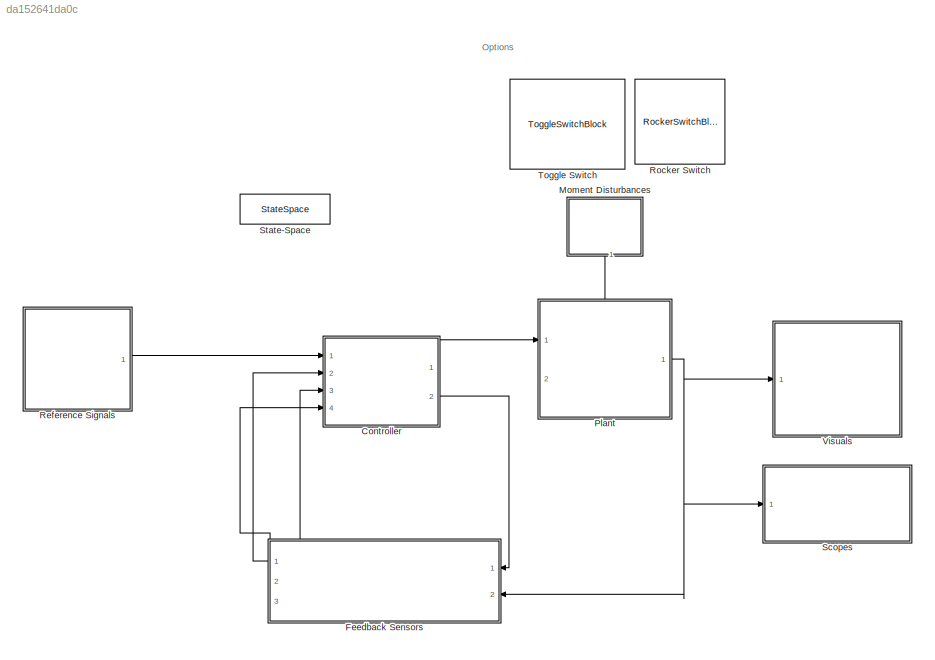
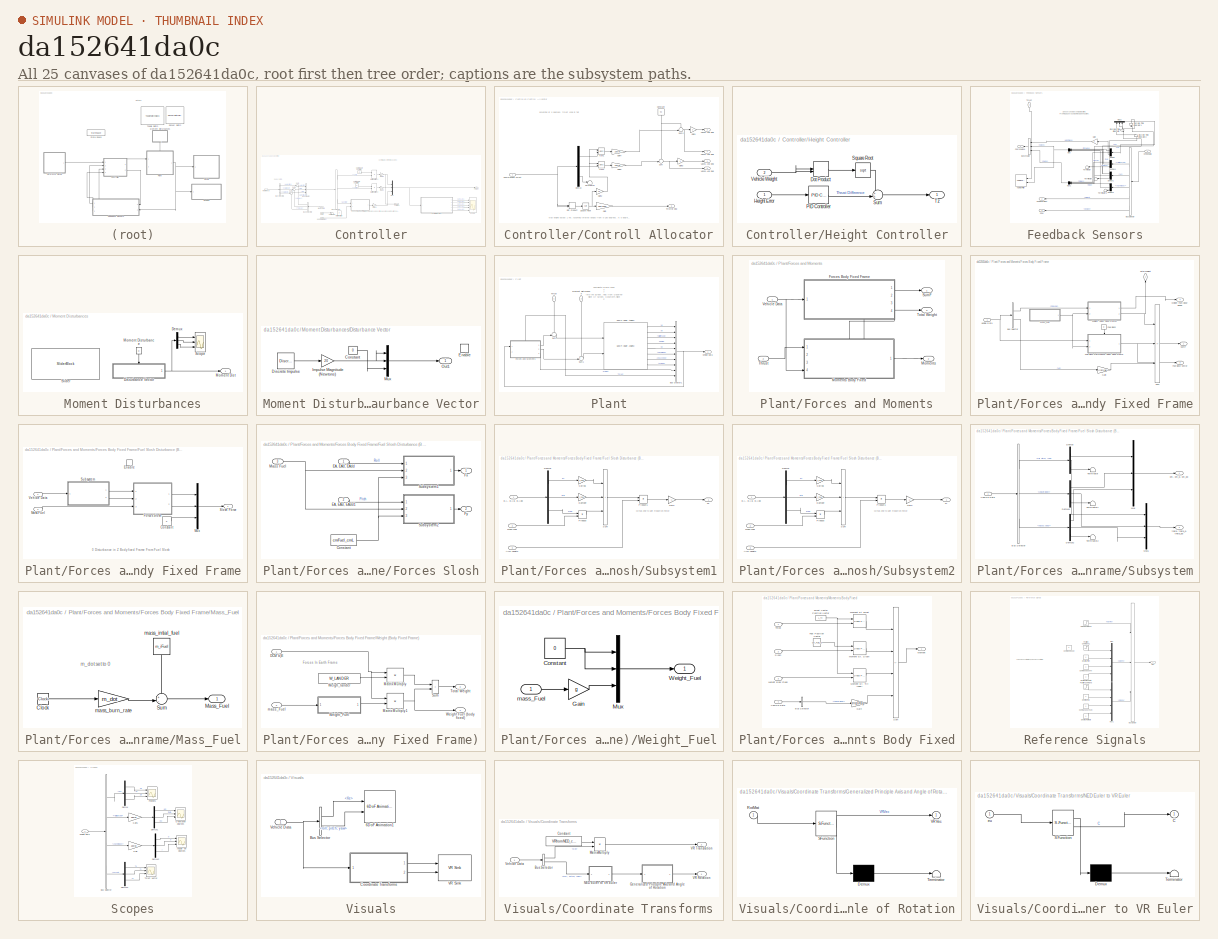
[diagram: thumbnail index - all 25 canvases of the model, root first then tree order]
MODEL slx_da152641da0c
KIND model
CONFIG AbsTol = auto
CONFIG EnableMultiTasking = off
CONFIG FixedStep = auto
CONFIG MaxStep = auto
CONFIG MinStep = auto
CONFIG RelTol = 1e-3
CONFIG SampleTimeConstraint = Unconstrained
CONFIG SolverName = VariableStepAuto
CONFIG StartTime = 0.0
CONFIG StopTime = 10.0
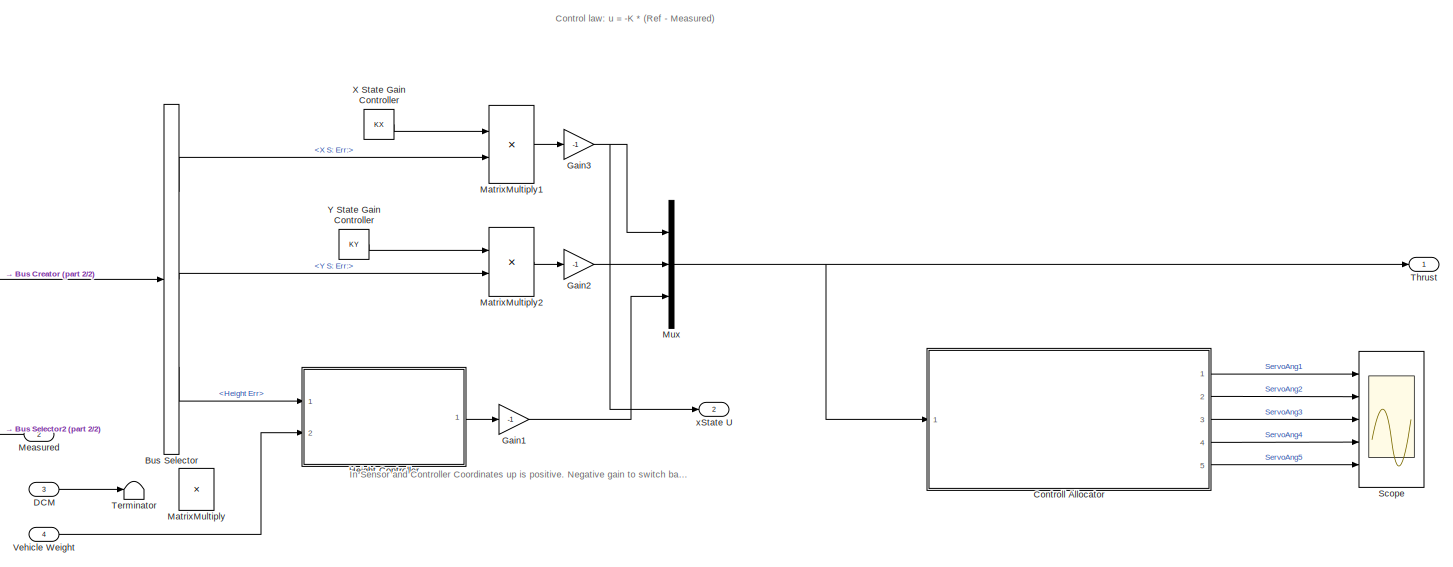
[diagram: Controller - part 1/2, most of the canvas]
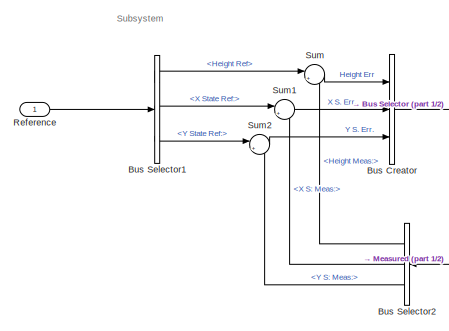
[diagram: Controller - part 2/2, middle left region]
BLOCK [SubSystem] Controller
  PortSchema = {"entries":[{"content":{"sides":[{"content":{"connectorIds":["In1","In2"]},"type":"ConnectorPlacement.EquallySpacedRectSide","uuid":"a9e81047-82e7-465f-ace1-8f718b90561e"},{"content":{"connectorIds":["Out1","Out2"],"side":"RIGHT"},"type":"ConnectorPlacement.EquallySpacedRectSide","uuid":"e48627af-c2aa-4531-b804-41f44ff16765"},{"content":{"connectorIds":[],"side":"TOP"},"type":"ConnectorPlacement.E...<+408ch>
  Ports = [4, 2]
  RequestExecContextInheritance = off
  TreatAsAtomicUnit = on
BLOCK [BusCreator] Controller/Bus Creator
  DisplayOption = bar
  InheritFromInputs = on
  Inputs = 3
  Ports = [3, 1]
BLOCK [BusSelector] Controller/Bus Selector
  OutputSignals = X S: Err:,Y S: Err:,Height Err
  Ports = [1, 3]
BLOCK [BusSelector] Controller/Bus Selector1
  OutputSignals = Height Ref,X State Ref:,Y State Ref:
  Ports = [1, 3]
BLOCK [BusSelector] Controller/Bus Selector2
  NameLocation = top
  OutputSignals = Height Meas:,X S: Meas:,Y S: Meas:
  Ports = [1, 3]
BLOCK [SubSystem] Controller/Controll Allocator
  Ports = [1, 5]
  RequestExecContextInheritance = off
BLOCK [Trigonometry] Controller/Controll Allocator/Atan1
  Operator = atan2
  Ports = [2, 1]
BLOCK [Trigonometry] Controller/Controll Allocator/Atan2
  Operator = atan2
  Ports = [2, 1]
BLOCK [Inport] Controller/Controll Allocator/Commanded Thrust
BLOCK [Constant] Controller/Controll Allocator/Constant
  NameLocation = left
  Value = 90
BLOCK [Demux] Controller/Controll Allocator/Demux
  Outputs = 3
  Ports = [1, 3]
BLOCK [DotProduct] Controller/Controll Allocator/Dot Product
  OutDataTypeStr = Inherit: Inherit via internal rule
BLOCK [Gain] Controller/Controll Allocator/Gain
  Gain = 180/1000
BLOCK [Gain] Controller/Controll Allocator/Gain1
  Gain = -1
BLOCK [Gain] Controller/Controll Allocator/Gain2
  Gain = 1/2
BLOCK [Gain] Controller/Controll Allocator/Gain3
  Gain = -1
BLOCK [Gain] Controller/Controll Allocator/Gain4
  Gain = 180/pi
BLOCK [Gain] Controller/Controll Allocator/Gain5
  Gain = 180/pi
BLOCK [Sqrt] Controller/Controll Allocator/Square Root
BLOCK [Sum] Controller/Controll Allocator/Sum
  Inputs = -+|
  Ports = [2, 1]
BLOCK [Sum] Controller/Controll Allocator/Sum2
  Inputs = +-|
  Ports = [2, 1]
BLOCK [Terminator] Controller/Controll Allocator/Terminator
BLOCK [Outport] Controller/Controll Allocator/Throttle Deg
  Port = 5
BLOCK [Outport] Controller/Controll Allocator/Vane1 Ang Deg
BLOCK [Outport] Controller/Controll Allocator/Vane2 Ang Deg
  Port = 2
BLOCK [Outport] Controller/Controll Allocator/Vane3 Ang Deg
  Port = 3
BLOCK [Outport] Controller/Controll Allocator/Vane4 Ang Deg
  Port = 4
BLOCK [Inport] Controller/DCM
  Port = 3
BLOCK [Gain] Controller/Gain1
  Gain = -1
BLOCK [Gain] Controller/Gain2
  Gain = -1
BLOCK [Gain] Controller/Gain3
  Gain = -1
BLOCK [SubSystem] Controller/Height Controller
  Ports = [2, 1]
  RequestExecContextInheritance = off
BLOCK [DotProduct] Controller/Height Controller/Dot Product
  OutDataTypeStr = Inherit: Inherit via internal rule
BLOCK [Inport] Controller/Height Controller/Height Error
BLOCK [Reference] Controller/Height Controller/PID Controller  REF=slpidlib/PID Controller
  Ports = [1, 1]
  SourceBlock = slpidlib/PID Controller
  SourceProductBaseCode = SL
  SourceType = PID 1dof
BLOCK [Sqrt] Controller/Height Controller/Square Root
BLOCK [Sum] Controller/Height Controller/Sum
  Inputs = ++|
  Ports = [2, 1]
BLOCK [Outport] Controller/Height Controller/Tz
BLOCK [Inport] Controller/Height Controller/Vehicle Weight
  Port = 2
BLOCK [Product] Controller/MatrixMultiply
  Commented = on
  Multiplication = Matrix(*)
  Ports = [2, 1]
BLOCK [Product] Controller/MatrixMultiply1
  Multiplication = Matrix(*)
  Ports = [2, 1]
BLOCK [Product] Controller/MatrixMultiply2
  Multiplication = Matrix(*)
  Ports = [2, 1]
BLOCK [Inport] Controller/Measured
  NameLocation = top
  Port = 2
BLOCK [Mux] Controller/Mux
  DisplayOption = bar
  Inputs = 3
  Ports = [3, 1]
BLOCK [Inport] Controller/Reference
BLOCK [Scope] Controller/Scope
  Floating = off
  NumInputPorts = 5
  Ports = [5]
  ScopeSpecificationString = Simulink.scopes.TimeScopeBlockCfg('CurrentConfiguration', extmgr.ConfigurationSet(extmgr.Configuration('Core','General UI',true),extmgr.Configuration('Core','Source UI',true),extmgr.Configuration('Sources','WiredSimulink',true,'DataLoggingVariableName','ScopeData1'),extmgr.Configuration('Visuals','Time Domain',true,'SerializedDisplays',{struct('MinYLimReal','-15.24675','MaxYLimReal','11.40017','YL...<+4863ch>
BLOCK [Sum] Controller/Sum
  Inputs = |+-
  Ports = [2, 1]
BLOCK [Sum] Controller/Sum1
  Inputs = |+-
  Ports = [2, 1]
BLOCK [Sum] Controller/Sum2
  Inputs = |+-
  Ports = [2, 1]
BLOCK [Terminator] Controller/Terminator
BLOCK [Outport] Controller/Thrust
BLOCK [Inport] Controller/Vehicle Weight
  Port = 4
BLOCK [Constant] Controller/X State Gain Controller
  Value = KX
  VectorParams1D = off
BLOCK [Constant] Controller/Y State Gain Controller
  Value = KY
  VectorParams1D = off
BLOCK [Outport] Controller/xState U
  Port = 2
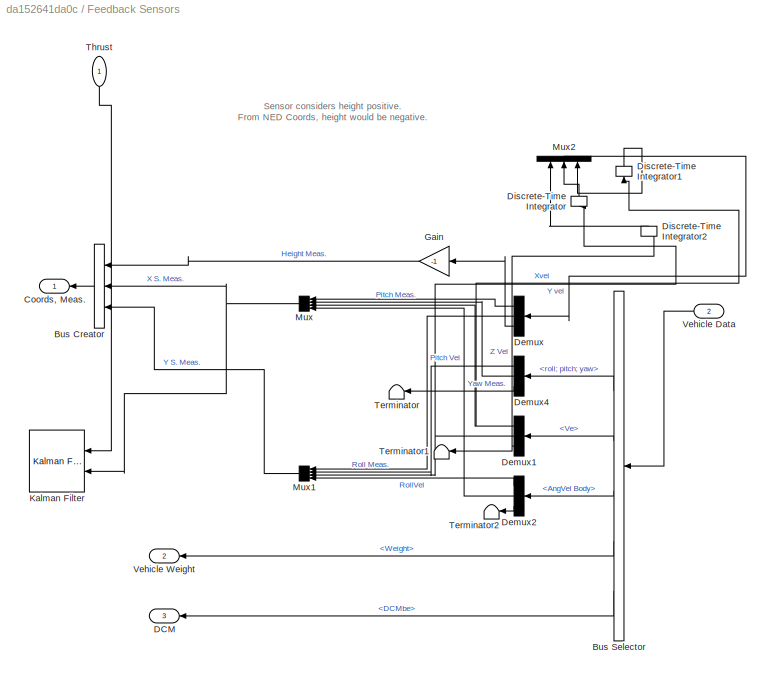
BLOCK [SubSystem] Feedback Sensors
  NameLocation = top
  PortSchema = {"entries":[{"content":{"sides":[{"content":{"connectorIds":["In1","In2"]},"type":"ConnectorPlacement.EquallySpacedRectSide","uuid":"d175d4a2-8e54-4a4e-8022-790f4682ab06"},{"content":{"connectorIds":["Out1"],"side":"RIGHT"},"type":"ConnectorPlacement.EquallySpacedRectSide","uuid":"24f1a27c-01cc-42b0-9970-402e35771ac9"},{"content":{"connectorIds":["Out2","Out3"],"side":"TOP"},"type":"ConnectorPlace...<+259ch>
  Ports = [2, 3]
  RequestExecContextInheritance = off
BLOCK [BusCreator] Feedback Sensors/Bus Creator
  DisplayOption = bar
  InheritFromInputs = on
  Inputs = 3
  NameLocation = top
  Ports = [3, 1]
BLOCK [BusSelector] Feedback Sensors/Bus Selector
  NameLocation = top
  OutputSignals = Xe,roll; pitch; yaw,Ve,AngVel Body,Weight,DCMbe
  Ports = [1, 6]
BLOCK [Outport] Feedback Sensors/Coords, Meas.
  NameLocation = top
BLOCK [Outport] Feedback Sensors/DCM
  NameLocation = top
  Port = 3
BLOCK [Demux] Feedback Sensors/Demux
  NameLocation = top
  Outputs = 3
  Ports = [1, 3]
BLOCK [Demux] Feedback Sensors/Demux1
  NameLocation = top
  Outputs = 3
  Ports = [1, 3]
BLOCK [Demux] Feedback Sensors/Demux2
  NameLocation = top
  Outputs = 3
  Ports = [1, 3]
BLOCK [Demux] Feedback Sensors/Demux4
  NameLocation = top
  Outputs = 3
  Ports = [1, 3]
BLOCK [DiscreteIntegrator] Feedback Sensors/Discrete-Time Integrator
  ICPrevOutput = DiscIntNeverNeededParam
  ICPrevScaledInput = DiscIntNeverNeededParam
  InitialConditionSetting = Auto
  NameLocation = right
  Ports = [1, 1]
  SampleTime = 1/50
BLOCK [DiscreteIntegrator] Feedback Sensors/Discrete-Time Integrator1
  ICPrevOutput = DiscIntNeverNeededParam
  ICPrevScaledInput = DiscIntNeverNeededParam
  InitialConditionSetting = Auto
  NameLocation = right
  Ports = [1, 1]
  SampleTime = 1/50
BLOCK [DiscreteIntegrator] Feedback Sensors/Discrete-Time Integrator2
  ICPrevOutput = DiscIntNeverNeededParam
  ICPrevScaledInput = DiscIntNeverNeededParam
  InitialConditionSetting = Auto
  NameLocation = right
  Ports = [1, 1]
  SampleTime = 1/50
BLOCK [Gain] Feedback Sensors/Gain
  Gain = -1
  NameLocation = top
BLOCK [Reference] Feedback Sensors/Kalman Filter  REF=ctrlSharedLib/Kalman Filter
  Commented = on
  NameLocation = top
  Ports = [2, 1]
  SourceBlock = ctrlSharedLib/Kalman Filter
  SourceProductBaseCode = CT,ID
  SourceType = ctrlKalmanFilter
BLOCK [Mux] Feedback Sensors/Mux
  DisplayOption = bar
  NameLocation = top
  Ports = [4, 1]
BLOCK [Mux] Feedback Sensors/Mux1
  DisplayOption = bar
  NameLocation = top
  Ports = [4, 1]
BLOCK [Mux] Feedback Sensors/Mux2
  DisplayOption = bar
  Inputs = 3
  NameLocation = right
  Ports = [3, 1]
BLOCK [Terminator] Feedback Sensors/Terminator
  NameLocation = top
BLOCK [Terminator] Feedback Sensors/Terminator1
  NameLocation = top
BLOCK [Terminator] Feedback Sensors/Terminator2
  NameLocation = top
BLOCK [Inport] Feedback Sensors/Thrust
  NameLocation = left
BLOCK [Inport] Feedback Sensors/Vehicle Data
  NameLocation = top
  Port = 2
BLOCK [Outport] Feedback Sensors/Vehicle Weight
  NameLocation = top
  Port = 2
BLOCK [SubSystem] Moment Disturbances
  NameLocation = top
  Ports = [0, 1]
  RequestExecContextInheritance = off
BLOCK [Demux] Moment Disturbances/Demux
  Outputs = 3
  Ports = [1, 3]
BLOCK [SubSystem] Moment Disturbances/Disturbance Vector
  Ports = [0, 1, 1]
  RequestExecContextInheritance = off
BLOCK [Constant] Moment Disturbances/Disturbance Vector/Constant
  Value = 0
BLOCK [Reference] Moment Disturbances/Disturbance Vector/Discrete Impulse  REF=dspsrcs4/Discrete 
Impulse
  Ports = [0, 1]
  SourceBlock = dspsrcs4/Discrete \nImpulse
  SourceProductBaseCode = DS
  SourceType = Discrete Impulse
BLOCK [EnablePort] Moment Disturbances/Disturbance Vector/Enable
  Ports = []
BLOCK [Gain] Moment Disturbances/Disturbance Vector/Impulse Magnitude (Newtons)
  Gain = 20
BLOCK [Mux] Moment Disturbances/Disturbance Vector/Mux
  DisplayOption = bar
  Inputs = 3
  Ports = [3, 1]
BLOCK [Outport] Moment Disturbances/Disturbance Vector/Out1
BLOCK [Outport] Moment Disturbances/Moment Dist
BLOCK [Constant] Moment Disturbances/Moment Disturbance
  NameLocation = left
  Value = 0
BLOCK [Scope] Moment Disturbances/Scope
  Floating = off
  NumInputPorts = 3
  Ports = [3]
  ScopeSpecificationString = Simulink.scopes.TimeScopeBlockCfg('CurrentConfiguration', extmgr.ConfigurationSet(extmgr.Configuration('Core','General UI',true),extmgr.Configuration('Core','Source UI',true),extmgr.Configuration('Sources','WiredSimulink',true,'DataLoggingVariableName','ScopeData1'),extmgr.Configuration('Visuals','Time Domain',true,'SerializedDisplays',{struct('MinYLimReal','-1.00000','MaxYLimReal','1.00000','YLab...<+2762ch>
BLOCK [SliderBlock] Moment Disturbances/Slider
  ScaleMax = 20
BLOCK [SubSystem] Plant
  PortSchema = {"entries":[{"content":{"sides":[{"content":{"connectorIds":["In1"]},"type":"ConnectorPlacement.EquallySpacedRectSide","uuid":"a9e81047-82e7-465f-ace1-8f718b90561e"},{"content":{"connectorIds":["Out1"],"side":"RIGHT"},"type":"ConnectorPlacement.EquallySpacedRectSide","uuid":"e48627af-c2aa-4531-b804-41f44ff16765"},{"content":{"connectorIds":["In2"],"side":"TOP"},"type":"ConnectorPlacement.EquallySp...<+245ch>
  Ports = [2, 1]
  RequestExecContextInheritance = off
BLOCK [Reference] Plant/6DOF (Euler Angles)  REF=shared6dof/6DOF (Euler Angles)
  Ports = [2, 8]
  SourceBlock = shared6dof/6DOF (Euler Angles)
  SourceProductBaseCode = AE,PW,DR,MT,UV,VE
  SourceType = 6DOF EoM (Body Axis)
BLOCK [BusCreator] Plant/Bus Creator1
  DisplayOption = bar
  InheritFromInputs = on
  Inputs = 10
  Ports = [10, 1]
BLOCK [SubSystem] Plant/Forces and Moments
  PortSchema = {"entries":[{"content":{"sides":[{"content":{"connectorIds":["In1"]},"type":"ConnectorPlacement.EquallySpacedRectSide","uuid":"828f15e3-cbad-415f-85fb-ba6a8e0cd3b9"},{"content":{"connectorIds":["Out1","Out2","Out3"],"side":"RIGHT"},"type":"ConnectorPlacement.EquallySpacedRectSide","uuid":"5000816a-8e0b-4f65-bf77-7d05076903d9"},{"content":{"connectorIds":["In2"],"side":"TOP"},"type":"ConnectorPlace...<+259ch>
  Ports = [2, 3]
  RequestExecContextInheritance = off
BLOCK [SubSystem] Plant/Forces and Moments/Forces Body Fixed Frame
  PortSchema = {"entries":[{"content":{"sides":[{"content":{"connectorIds":["In1"]},"type":"ConnectorPlacement.EquallySpacedRectSide","uuid":"828f15e3-cbad-415f-85fb-ba6a8e0cd3b9"},{"content":{"connectorIds":["Out1","Out2"],"side":"RIGHT"},"type":"ConnectorPlacement.EquallySpacedRectSide","uuid":"5000816a-8e0b-4f65-bf77-7d05076903d9"},{"content":{"connectorIds":[],"side":"TOP"},"type":"ConnectorPlacement.Equally...<+404ch>
  Ports = [1, 4]
  RequestExecContextInheritance = off
  TreatAsAtomicUnit = on
BLOCK [BusSelector] Plant/Forces and Moments/Forces Body Fixed Frame/Bus Selector
  OutputSignals = DCMbe,Ve
  Ports = [1, 2]
BLOCK [Constant] Plant/Forces and Moments/Forces Body Fixed Frame/Fuel Slosh
  NameLocation = left
  Value = 0
BLOCK [SubSystem] Plant/Forces and Moments/Forces Body Fixed Frame/Fuel Slosh Disturbance (Body Fixed Frame
  Ports = [2, 1, 1]
  RequestExecContextInheritance = off
BLOCK [Constant] Plant/Forces and Moments/Forces Body Fixed Frame/Fuel Slosh Disturbance (Body Fixed Frame/Constant
  Value = 0
BLOCK [EnablePort] Plant/Forces and Moments/Forces Body Fixed Frame/Fuel Slosh Disturbance (Body Fixed Frame/Enable
  Ports = []
BLOCK [SubSystem] Plant/Forces and Moments/Forces Body Fixed Frame/Fuel Slosh Disturbance (Body Fixed Frame/Forces Slosh
  Ports = [3, 2]
  RequestExecContextInheritance = off
BLOCK [Constant] Plant/Forces and Moments/Forces Body Fixed Frame/Fuel Slosh Disturbance (Body Fixed Frame/Forces Slosh/Constant
  Value = cmFuel_cmL
BLOCK [Inport] Plant/Forces and Moments/Forces Body Fixed Frame/Fuel Slosh Disturbance (Body Fixed Frame/Forces Slosh/EA, EAd, EAdd
BLOCK [Inport] Plant/Forces and Moments/Forces Body Fixed Frame/Fuel Slosh Disturbance (Body Fixed Frame/Forces Slosh/EA, EAd, EAdd1
  Port = 2
BLOCK [Outport] Plant/Forces and Moments/Forces Body Fixed Frame/Fuel Slosh Disturbance (Body Fixed Frame/Forces Slosh/Fx
BLOCK [Outport] Plant/Forces and Moments/Forces Body Fixed Frame/Fuel Slosh Disturbance (Body Fixed Frame/Forces Slosh/Fy
  Port = 2
BLOCK [Inport] Plant/Forces and Moments/Forces Body Fixed Frame/Fuel Slosh Disturbance (Body Fixed Frame/Forces Slosh/Mass Fuel
  Port = 3
BLOCK [SubSystem] Plant/Forces and Moments/Forces Body Fixed Frame/Fuel Slosh Disturbance (Body Fixed Frame/Forces Slosh/Subsystem1
  Ports = [3, 1]
  RequestExecContextInheritance = off
BLOCK [Inport] Plant/Forces and Moments/Forces Body Fixed Frame/Fuel Slosh Disturbance (Body Fixed Frame/Forces Slosh/Subsystem1/Arm Length
  Port = 3
BLOCK [Gain] Plant/Forces and Moments/Forces Body Fixed Frame/Fuel Slosh Disturbance (Body Fixed Frame/Forces Slosh/Subsystem1/Damper
  Gain = c_Fuel
BLOCK [Demux] Plant/Forces and Moments/Forces Body Fixed Frame/Fuel Slosh Disturbance (Body Fixed Frame/Forces Slosh/Subsystem1/Demux
  Outputs = 3
  Ports = [1, 3]
BLOCK [Inport] Plant/Forces and Moments/Forces Body Fixed Frame/Fuel Slosh Disturbance (Body Fixed Frame/Forces Slosh/Subsystem1/EA, EAd, EAdd
BLOCK [Outport] Plant/Forces and Moments/Forces Body Fixed Frame/Fuel Slosh Disturbance (Body Fixed Frame/Forces Slosh/Subsystem1/Fx
BLOCK [Gain] Plant/Forces and Moments/Forces Body Fixed Frame/Fuel Slosh Disturbance (Body Fixed Frame/Forces Slosh/Subsystem1/Gain
  Gain = -1
BLOCK [Inport] Plant/Forces and Moments/Forces Body Fixed Frame/Fuel Slosh Disturbance (Body Fixed Frame/Forces Slosh/Subsystem1/Mass Fuel
  Port = 2
BLOCK [Product] Plant/Forces and Moments/Forces Body Fixed Frame/Fuel Slosh Disturbance (Body Fixed Frame/Forces Slosh/Subsystem1/Product
  Ports = [2, 1]
BLOCK [Product] Plant/Forces and Moments/Forces Body Fixed Frame/Fuel Slosh Disturbance (Body Fixed Frame/Forces Slosh/Subsystem1/Product1
  Ports = [2, 1]
BLOCK [Gain] Plant/Forces and Moments/Forces Body Fixed Frame/Fuel Slosh Disturbance (Body Fixed Frame/Forces Slosh/Subsystem1/Spring
  Gain = k_Fuel
BLOCK [Sum] Plant/Forces and Moments/Forces Body Fixed Frame/Fuel Slosh Disturbance (Body Fixed Frame/Forces Slosh/Subsystem1/Sum
  IconShape = rectangular
  Inputs = +++
  Ports = [3, 1]
BLOCK [SubSystem] Plant/Forces and Moments/Forces Body Fixed Frame/Fuel Slosh Disturbance (Body Fixed Frame/Forces Slosh/Subsystem2
  Ports = [3, 1]
  RequestExecContextInheritance = off
BLOCK [Inport] Plant/Forces and Moments/Forces Body Fixed Frame/Fuel Slosh Disturbance (Body Fixed Frame/Forces Slosh/Subsystem2/Arm Length
  Port = 3
BLOCK [Gain] Plant/Forces and Moments/Forces Body Fixed Frame/Fuel Slosh Disturbance (Body Fixed Frame/Forces Slosh/Subsystem2/Damper
  Gain = c_Fuel
BLOCK [Demux] Plant/Forces and Moments/Forces Body Fixed Frame/Fuel Slosh Disturbance (Body Fixed Frame/Forces Slosh/Subsystem2/Demux
  Outputs = 3
  Ports = [1, 3]
BLOCK [Inport] Plant/Forces and Moments/Forces Body Fixed Frame/Fuel Slosh Disturbance (Body Fixed Frame/Forces Slosh/Subsystem2/EA, EAd, EAdd
BLOCK [Outport] Plant/Forces and Moments/Forces Body Fixed Frame/Fuel Slosh Disturbance (Body Fixed Frame/Forces Slosh/Subsystem2/Fy
BLOCK [Gain] Plant/Forces and Moments/Forces Body Fixed Frame/Fuel Slosh Disturbance (Body Fixed Frame/Forces Slosh/Subsystem2/Gain
  Gain = -1
BLOCK [Inport] Plant/Forces and Moments/Forces Body Fixed Frame/Fuel Slosh Disturbance (Body Fixed Frame/Forces Slosh/Subsystem2/Mass Fuel
  Port = 2
BLOCK [Product] Plant/Forces and Moments/Forces Body Fixed Frame/Fuel Slosh Disturbance (Body Fixed Frame/Forces Slosh/Subsystem2/Product
  Ports = [2, 1]
BLOCK [Product] Plant/Forces and Moments/Forces Body Fixed Frame/Fuel Slosh Disturbance (Body Fixed Frame/Forces Slosh/Subsystem2/Product1
  Ports = [2, 1]
BLOCK [Gain] Plant/Forces and Moments/Forces Body Fixed Frame/Fuel Slosh Disturbance (Body Fixed Frame/Forces Slosh/Subsystem2/Spring
  Gain = k_Fuel
BLOCK [Sum] Plant/Forces and Moments/Forces Body Fixed Frame/Fuel Slosh Disturbance (Body Fixed Frame/Forces Slosh/Subsystem2/Sum
  IconShape = rectangular
  Inputs = +++
  Ports = [3, 1]
BLOCK [Inport] Plant/Forces and Moments/Forces Body Fixed Frame/Fuel Slosh Disturbance (Body Fixed Frame/Mass Fuel
  Port = 2
BLOCK [Mux] Plant/Forces and Moments/Forces Body Fixed Frame/Fuel Slosh Disturbance (Body Fixed Frame/Mux
  DisplayOption = bar
  Inputs = 3
  Ports = [3, 1]
BLOCK [Outport] Plant/Forces and Moments/Forces Body Fixed Frame/Fuel Slosh Disturbance (Body Fixed Frame/Slosh Force
BLOCK [SubSystem] Plant/Forces and Moments/Forces Body Fixed Frame/Fuel Slosh Disturbance (Body Fixed Frame/Subsystem
  Ports = [1, 2]
  RequestExecContextInheritance = off
BLOCK [BusSelector] Plant/Forces and Moments/Forces Body Fixed Frame/Fuel Slosh Disturbance (Body Fixed Frame/Subsystem/Bus Selector
  NameLocation = right
  OutputSignals = roll; pitch; yaw,AngVel Body,AngAcc body
  Ports = [1, 3]
BLOCK [Demux] Plant/Forces and Moments/Forces Body Fixed Frame/Fuel Slosh Disturbance (Body Fixed Frame/Subsystem/Demux
  Outputs = 3
  Ports = [1, 3]
BLOCK [Demux] Plant/Forces and Moments/Forces Body Fixed Frame/Fuel Slosh Disturbance (Body Fixed Frame/Subsystem/Demux1
  Outputs = 3
  Ports = [1, 3]
BLOCK [Demux] Plant/Forces and Moments/Forces Body Fixed Frame/Fuel Slosh Disturbance (Body Fixed Frame/Subsystem/Demux2
  Outputs = 3
  Ports = [1, 3]
BLOCK [Mux] Plant/Forces and Moments/Forces Body Fixed Frame/Fuel Slosh Disturbance (Body Fixed Frame/Subsystem/Mux
  DisplayOption = bar
  Inputs = 3
  Ports = [3, 1]
BLOCK [Mux] Plant/Forces and Moments/Forces Body Fixed Frame/Fuel Slosh Disturbance (Body Fixed Frame/Subsystem/Mux1
  DisplayOption = bar
  Inputs = 3
  Ports = [3, 1]
BLOCK [Terminator] Plant/Forces and Moments/Forces Body Fixed Frame/Fuel Slosh Disturbance (Body Fixed Frame/Subsystem/Terminator
BLOCK [Terminator] Plant/Forces and Moments/Forces Body Fixed Frame/Fuel Slosh Disturbance (Body Fixed Frame/Subsystem/Terminator1
BLOCK [Terminator] Plant/Forces and Moments/Forces Body Fixed Frame/Fuel Slosh Disturbance (Body Fixed Frame/Subsystem/Terminator2
BLOCK [Inport] Plant/Forces and Moments/Forces Body Fixed Frame/Fuel Slosh Disturbance (Body Fixed Frame/Subsystem/Vehicle Data
BLOCK [Outport] Plant/Forces and Moments/Forces Body Fixed Frame/Fuel Slosh Disturbance (Body Fixed Frame/Subsystem/phi, phi_d, phi_dd
BLOCK [Outport] Plant/Forces and Moments/Forces Body Fixed Frame/Fuel Slosh Disturbance (Body Fixed Frame/Subsystem/theta, theta_d, theta_dd
  Port = 2
BLOCK [Inport] Plant/Forces and Moments/Forces Body Fixed Frame/Fuel Slosh Disturbance (Body Fixed Frame/Vehicle Data
BLOCK [Outport] Plant/Forces and Moments/Forces Body Fixed Frame/Fuel Slosh Vector
  Port = 3
BLOCK [Gain] Plant/Forces and Moments/Forces Body Fixed Frame/Gain
  Gain = linDrag
BLOCK [SubSystem] Plant/Forces and Moments/Forces Body Fixed Frame/Mass_Fuel
  Ports = [0, 1]
  RequestExecContextInheritance = off
BLOCK [Clock] Plant/Forces and Moments/Forces Body Fixed Frame/Mass_Fuel/Clock
BLOCK [Outport] Plant/Forces and Moments/Forces Body Fixed Frame/Mass_Fuel/Mass_Fuel
BLOCK [Sum] Plant/Forces and Moments/Forces Body Fixed Frame/Mass_Fuel/Sum
  Inputs = +-|
  Ports = [2, 1]
BLOCK [Gain] Plant/Forces and Moments/Forces Body Fixed Frame/Mass_Fuel/mass_burn_rate
  Gain = m_dot
BLOCK [Constant] Plant/Forces and Moments/Forces Body Fixed Frame/Mass_Fuel/mass_intial_fuel
  NameLocation = left
  Value = m_iFuel
BLOCK [Sum] Plant/Forces and Moments/Forces Body Fixed Frame/Sum
  IconShape = rectangular
  Inputs = ++-
  Ports = [3, 1]
BLOCK [Outport] Plant/Forces and Moments/Forces Body Fixed Frame/SumF
BLOCK [Outport] Plant/Forces and Moments/Forces Body Fixed Frame/Total Weight
  NameLocation = right
  Port = 2
BLOCK [Inport] Plant/Forces and Moments/Forces Body Fixed Frame/Vehicle Data
BLOCK [SubSystem] Plant/Forces and Moments/Forces Body Fixed Frame/Weight (Body Fixed Frame)
  Ports = [2, 2]
  RequestExecContextInheritance = off
BLOCK [Inport] Plant/Forces and Moments/Forces Body Fixed Frame/Weight (Body Fixed Frame)/DCM b)E
BLOCK [Product] Plant/Forces and Moments/Forces Body Fixed Frame/Weight (Body Fixed Frame)/MatrixMultiply
  Multiplication = Matrix(*)
  Ports = [2, 1]
BLOCK [Product] Plant/Forces and Moments/Forces Body Fixed Frame/Weight (Body Fixed Frame)/MatrixMultiply1
  Multiplication = Matrix(*)
  Ports = [2, 1]
BLOCK [Sum] Plant/Forces and Moments/Forces Body Fixed Frame/Weight (Body Fixed Frame)/Sum
  IconShape = rectangular
  Ports = [2, 1]
BLOCK [Outport] Plant/Forces and Moments/Forces Body Fixed Frame/Weight (Body Fixed Frame)/Total Weight
  Port = 2
BLOCK [Constant] Plant/Forces and Moments/Forces Body Fixed Frame/Weight (Body Fixed Frame)/Weigh_lander
  Value = W_LANDER
BLOCK [Outport] Plant/Forces and Moments/Forces Body Fixed Frame/Weight (Body Fixed Frame)/Weight Fuel (body fixed)
BLOCK [SubSystem] Plant/Forces and Moments/Forces Body Fixed Frame/Weight (Body Fixed Frame)/Weight_Fuel
  Ports = [1, 1]
  RequestExecContextInheritance = off
  TreatAsAtomicUnit = on
BLOCK [Constant] Plant/Forces and Moments/Forces Body Fixed Frame/Weight (Body Fixed Frame)/Weight_Fuel/Constant
  Value = 0
BLOCK [Gain] Plant/Forces and Moments/Forces Body Fixed Frame/Weight (Body Fixed Frame)/Weight_Fuel/Gain
  Gain = g
BLOCK [Mux] Plant/Forces and Moments/Forces Body Fixed Frame/Weight (Body Fixed Frame)/Weight_Fuel/Mux
  DisplayOption = bar
  Inputs = 3
  Ports = [3, 1]
BLOCK [Outport] Plant/Forces and Moments/Forces Body Fixed Frame/Weight (Body Fixed Frame)/Weight_Fuel/Weight_Fuel
BLOCK [Inport] Plant/Forces and Moments/Forces Body Fixed Frame/Weight (Body Fixed Frame)/Weight_Fuel/mass_Fuel
BLOCK [Inport] Plant/Forces and Moments/Forces Body Fixed Frame/Weight (Body Fixed Frame)/mass_Fuel
  Port = 2
BLOCK [Outport] Plant/Forces and Moments/Forces Body Fixed Frame/Weight Fuel (Body Fixed)
  Port = 4
BLOCK [Outport] Plant/Forces and Moments/Moments
  Port = 2
BLOCK [SubSystem] Plant/Forces and Moments/Moments Body Fixed
  PortSchema = {"entries":[{"content":{"sides":[{"content":{"connectorIds":["In1","In2"]},"type":"ConnectorPlacement.EquallySpacedRectSide","uuid":"bf632890-9061-4ebf-b839-17051433f7d2"},{"content":{"connectorIds":["Out1"],"side":"RIGHT"},"type":"ConnectorPlacement.EquallySpacedRectSide","uuid":"d3255547-983f-46fe-8ffa-de3f6c331a2a"},{"content":{"connectorIds":["In3","In4"],"side":"TOP"},"type":"ConnectorPlaceme...<+257ch>
  Ports = [4, 1]
  RequestExecContextInheritance = off
BLOCK [BusSelector] Plant/Forces and Moments/Moments Body Fixed/Bus Selector
  OutputSignals = AngVel Body
  Ports = [1, 1]
BLOCK [Constant] Plant/Forces and Moments/Moments Body Fixed/Fuel Position Vector
  Value = CM_FUEL_b
BLOCK [Gain] Plant/Forces and Moments/Moments Body Fixed/Gain
  Gain = angDrag
BLOCK [Outport] Plant/Forces and Moments/Moments Body Fixed/Moment
BLOCK [Reference] Plant/Forces and Moments/Moments Body Fixed/Moment d.t Thrust  REF=matrix_library/Cross Product
  Ports = [2, 1]
  SourceBlock = matrix_library/Cross Product
  SourceProductBaseCode = SL
  SourceType = CrossProduct
BLOCK [Reference] Plant/Forces and Moments/Moments Body Fixed/Moment d.t. Slosh  REF=matrix_library/Cross Product
  Ports = [2, 1]
  SourceBlock = matrix_library/Cross Product
  SourceProductBaseCode = SL
  SourceType = CrossProduct
BLOCK [Reference] Plant/Forces and Moments/Moments Body Fixed/Moment d.t. Tilt (Fuel)  REF=matrix_library/Cross Product
  Ports = [2, 1]
  SourceBlock = matrix_library/Cross Product
  SourceProductBaseCode = SL
  SourceType = CrossProduct
BLOCK [Inport] Plant/Forces and Moments/Moments Body Fixed/Slosh
  Port = 2
BLOCK [Sum] Plant/Forces and Moments/Moments Body Fixed/Sum
  IconShape = rectangular
  Inputs = +++-
  Ports = [4, 1]
BLOCK [Inport] Plant/Forces and Moments/Moments Body Fixed/Thrust
BLOCK [Constant] Plant/Forces and Moments/Moments Body Fixed/Thrust Vector Position Vector
  Value = L_TV
BLOCK [Inport] Plant/Forces and Moments/Moments Body Fixed/Vehicle Data
  Port = 4
BLOCK [Inport] Plant/Forces and Moments/Moments Body Fixed/Weight Body Fixed
  Port = 3
BLOCK [Outport] Plant/Forces and Moments/SumF
BLOCK [Inport] Plant/Forces and Moments/Thrust
  NameLocation = top
  Port = 2
BLOCK [Outport] Plant/Forces and Moments/Total Weight
  Port = 3
BLOCK [Inport] Plant/Forces and Moments/Vehicle Data
BLOCK [Inport] Plant/Moment Disturbance
  NameLocation = left
  Port = 2
BLOCK [Sum] Plant/Sum
  Inputs = ++|
  Ports = [2, 1]
BLOCK [Sum] Plant/Sum1
  Inputs = ++|
  Ports = [2, 1]
BLOCK [Inport] Plant/Thrust
  NameLocation = left
BLOCK [Outport] Plant/Vehicle Data
BLOCK [SubSystem] Reference Signals
  Ports = [0, 1]
  RequestExecContextInheritance = off
BLOCK [BusCreator] Reference Signals/Bus Creator
  DisplayOption = bar
  InheritFromInputs = on
  Inputs = 3
  Ports = [3, 1]
BLOCK [Constant] Reference Signals/Commanded Xe
  Value = 0
BLOCK [Constant] Reference Signals/Commanded Xvel
  Value = 0
BLOCK [Constant] Reference Signals/Commanded YeVel
  Value = 0
BLOCK [Constant] Reference Signals/Desired Pitch
  Value = 0
BLOCK [Constant] Reference Signals/Desired PitchRate
  Value = 0
BLOCK [Constant] Reference Signals/Desired Roll
  Value = 0
BLOCK [Constant] Reference Signals/Desired RollRate
  Value = 0
BLOCK [Step] Reference Signals/Height Command
  SampleTime = 0
BLOCK [Mux] Reference Signals/Mux
  DisplayOption = bar
  Ports = [4, 1]
BLOCK [Mux] Reference Signals/Mux1
  DisplayOption = bar
  Ports = [4, 1]
BLOCK [Step] Reference Signals/Position Command
  SampleTime = 0
  Time = 3
BLOCK [Step] Reference Signals/Position Command1
  SampleTime = 0
  Time = 3
BLOCK [Outport] Reference Signals/Ref.
BLOCK [RockerSwitchBlock] Rocker Switch
BLOCK [SubSystem] Scopes
  Ports = [1]
  RequestExecContextInheritance = off
BLOCK [Scope] Scopes/Angular Vel Degrees
  Floating = off
  NumInputPorts = 3
  Ports = [3]
  ScopeSpecificationString = Simulink.scopes.TimeScopeBlockCfg('CurrentConfiguration', extmgr.ConfigurationSet(extmgr.Configuration('Core','General UI',true),extmgr.Configuration('Core','Source UI',true),extmgr.Configuration('Sources','WiredSimulink',true,'DataLoggingVariableName','ScopeData2'),extmgr.Configuration('Visuals','Time Domain',true,'SerializedDisplays',{struct('MinYLimReal','-25.08551','MaxYLimReal','25.23426','YL...<+2778ch>
BLOCK [BusSelector] Scopes/Bus Selector
  OutputSignals = Xe,roll; pitch; yaw,AngVel Body,Thrust
  Ports = [1, 4]
BLOCK [Demux] Scopes/Demux
  Outputs = 3
  Ports = [1, 3]
BLOCK [Demux] Scopes/Demux1
  Outputs = 3
  Ports = [1, 3]
BLOCK [Demux] Scopes/Demux2
  Outputs = 3
  Ports = [1, 3]
BLOCK [Demux] Scopes/Demux3
  Outputs = 3
  Ports = [1, 3]
BLOCK [Gain] Scopes/Gain
  Gain = 180/pi
BLOCK [Gain] Scopes/Gain1
  Gain = 180/pi
BLOCK [Scope] Scopes/Orientation Degrees
  Floating = off
  NumInputPorts = 3
  Ports = [3]
  ScopeSpecificationString = Simulink.scopes.TimeScopeBlockCfg('CurrentConfiguration', extmgr.ConfigurationSet(extmgr.Configuration('Core','General UI',true),extmgr.Configuration('Core','Source UI',true),extmgr.Configuration('Sources','WiredSimulink',true,'DataLoggingVariableName','ScopeData1'),extmgr.Configuration('Visuals','Time Domain',true,'SerializedDisplays',{struct('MinYLimReal','-2.52302','MaxYLimReal','5.92802','YLab...<+2777ch>
BLOCK [Scope] Scopes/Positions
  Floating = off
  NumInputPorts = 3
  Ports = [3]
  ScopeSpecificationString = Simulink.scopes.TimeScopeBlockCfg('CurrentConfiguration', extmgr.ConfigurationSet(extmgr.Configuration('Core','General UI',true),extmgr.Configuration('Core','Source UI',true),extmgr.Configuration('Sources','WiredSimulink',true),extmgr.Configuration('Visuals','Time Domain',true,'SerializedDisplays',{struct('MinYLimReal','-0.87473','MaxYLimReal','1.38323','YLabelReal','','MinYLimMag','0.00000','MaxY...<+1408ch>
BLOCK [Scope] Scopes/Thrust Vector
  Floating = off
  NumInputPorts = 3
  Ports = [3]
  ScopeSpecificationString = Simulink.scopes.TimeScopeBlockCfg('CurrentConfiguration', extmgr.ConfigurationSet(extmgr.Configuration('Core','General UI',true),extmgr.Configuration('Core','Source UI',true),extmgr.Configuration('Sources','WiredSimulink',true,'DataLoggingVariableName','ScopeData3'),extmgr.Configuration('Visuals','Time Domain',true,'SerializedDisplays',{struct('MinYLimReal','-54.05327','MaxYLimReal','39.26583','YL...<+2794ch>
BLOCK [Inport] Scopes/Vehicle Data
BLOCK [StateSpace] State-Space
  A = A
  B = B
  C = C
  D = D
  InitialCondition = 0
  Ports = [1, 1]
BLOCK [ToggleSwitchBlock] Toggle Switch
BLOCK [SubSystem] Visuals
  Commented = on
  Permissions = ReadOnly
  Ports = [1]
  RequestExecContextInheritance = off
  TreatAsAtomicUnit = on
BLOCK [Reference] Visuals/6DoF Animation1  REF=aerolibanim/6DoF Animation
  Ports = [2]
  SourceBlock = aerolibanim/6DoF Animation
  SourceProductBaseCode = AE
  SourceType = 6DoF_Animation
BLOCK [BusSelector] Visuals/Bus Selector
  OutputSignals = Xe,roll; pitch; yaw
  Ports = [1, 2]
BLOCK [SubSystem] Visuals/Coordinate Transforms
  Ports = [1, 2]
  RequestExecContextInheritance = off
BLOCK [BusSelector] Visuals/Coordinate Transforms/Bus Selector
  OutputSignals = Xe,roll; pitch; yaw
  Ports = [1, 2]
BLOCK [Constant] Visuals/Coordinate Transforms/Constant
  Value = VRfromNED_cordT
BLOCK [SubSystem] Visuals/Coordinate Transforms/Generalized Principle Axis and Angle of Rotation
  ErrorFcn = Stateflow.Translate.translate
  PermitHierarchicalResolution = ExplicitOnly
  Ports = [1, 1]
  RequestExecContextInheritance = off
  SFBlockType = MATLAB Function
  TreatAsAtomicUnit = on
BLOCK [Demux] Visuals/Coordinate Transforms/Generalized Principle Axis and Angle of Rotation/ Demux 
  Outputs = 1
  Ports = [1, 1]
BLOCK [S-Function] Visuals/Coordinate Transforms/Generalized Principle Axis and Angle of Rotation/ SFunction 
  EnableBusSupport = on
  FunctionName = sf_sfun
  PortCounts = [1 2]
  Ports = [1, 2]
  SFcnIsStateOwnerBlock = off
  SFunctionDeploymentMode = off
  Tag = Stateflow S-Function 2
BLOCK [Terminator] Visuals/Coordinate Transforms/Generalized Principle Axis and Angle of Rotation/ Terminator 
BLOCK [Inport] Visuals/Coordinate Transforms/Generalized Principle Axis and Angle of Rotation/RotMat
BLOCK [Outport] Visuals/Coordinate Transforms/Generalized Principle Axis and Angle of Rotation/VRVec
BLOCK [Product] Visuals/Coordinate Transforms/MatrixMultiply
  Multiplication = Matrix(*)
  Ports = [2, 1]
BLOCK [SubSystem] Visuals/Coordinate Transforms/NED Euler to VR Euler
  ErrorFcn = Stateflow.Translate.translate
  PermitHierarchicalResolution = ExplicitOnly
  Ports = [1, 1]
  RequestExecContextInheritance = off
  SFBlockType = MATLAB Function
  TreatAsAtomicUnit = on
BLOCK [Demux] Visuals/Coordinate Transforms/NED Euler to VR Euler/ Demux 
  Outputs = 1
  Ports = [1, 1]
BLOCK [S-Function] Visuals/Coordinate Transforms/NED Euler to VR Euler/ SFunction 
  EnableBusSupport = on
  FunctionName = sf_sfun
  PortCounts = [1 2]
  Ports = [1, 2]
  SFcnIsStateOwnerBlock = off
  SFunctionDeploymentMode = off
  Tag = Stateflow S-Function 3
BLOCK [Terminator] Visuals/Coordinate Transforms/NED Euler to VR Euler/ Terminator 
BLOCK [Outport] Visuals/Coordinate Transforms/NED Euler to VR Euler/C
BLOCK [Inport] Visuals/Coordinate Transforms/NED Euler to VR Euler/eu
BLOCK [Outport] Visuals/Coordinate Transforms/VR Rotation
BLOCK [Outport] Visuals/Coordinate Transforms/VR Translation
  Port = 2
BLOCK [Inport] Visuals/Coordinate Transforms/Vehicle Data
BLOCK [Reference] Visuals/VR Sink  REF=vrlib/VR Sink
  InstantiateOnLoad = on
  Ports = [2]
  SourceBlock = vrlib/VR Sink
  SourceProductBaseCode = SL
  SourceType = Virtual Reality Sink
BLOCK [Inport] Visuals/Vehicle Data
ANNOTATION (root): Options
ANNOTATION Controller: Control law: u = -K * (Ref - Measured)
ANNOTATION Controller: In Sensor and Controller Coordinates up is positive. Negative gain to switch back to NED
ANNOTATION Controller: Subsystem
ANNOTATION Controller/Controll Allocator: Max engine output 1 KN. Assuming throttle ranges from 0-180 degrees. At 0 degrees = 0 thrust. at 180 deg = 1 Kn
ANNOTATION Controller/Controll Allocator: assuming at 0 degrees. thrust vane is flat
ANNOTATION Feedback Sensors: Sensor considers height positive. From NED Coords, height would be negative.
ANNOTATION Plant: Coordinate Frame used. X Into the Screen. Away from Observer Y Right Of Screen. Observer's Right Z Down to ground. Observer's Ground
ANNOTATION Plant/Forces and Moments/Forces Body Fixed Frame/Fuel Slosh Disturbance (Body Fixed Frame: 0 Disturbance in Z Body fixed Frame From Fuel Slosh
ANNOTATION Plant/Forces and Moments/Forces Body Fixed Frame/Fuel Slosh Disturbance (Body Fixed Frame/Forces Slosh/Subsystem1: Minus one to get Reaction Force
ANNOTATION Plant/Forces and Moments/Forces Body Fixed Frame/Fuel Slosh Disturbance (Body Fixed Frame/Forces Slosh/Subsystem2: Minus one to get Reaction Force
ANNOTATION Plant/Forces and Moments/Forces Body Fixed Frame/Mass_Fuel: m_dot set to 0
ANNOTATION Plant/Forces and Moments/Forces Body Fixed Frame/Weight (Body Fixed Frame): Forces In Earth Frame
ANNOTATION Reference Signals: Forces in X control pitch, Forces in Y control roll.
LINE Controller/Bus Creator:1 -> Controller/Bus Selector:1
LINE Controller/Bus Selector1:1 -> Controller/Sum:1
LINE Controller/Bus Selector1:2 -> Controller/Sum1:1
LINE Controller/Bus Selector1:3 -> Controller/Sum2:1
LINE Controller/Bus Selector2:1 -> Controller/Sum:2
LINE Controller/Bus Selector2:2 -> Controller/Sum1:2
LINE Controller/Bus Selector2:3 -> Controller/Sum2:2
LINE Controller/Bus Selector:1 -> Controller/MatrixMultiply1:2
LINE Controller/Bus Selector:2 -> Controller/MatrixMultiply2:2
LINE Controller/Bus Selector:3 -> Controller/Height Controller:1
LINE Controller/Controll Allocator/Atan1:1 -> Controller/Controll Allocator/Gain4:1
LINE Controller/Controll Allocator/Atan2:1 -> Controller/Controll Allocator/Gain5:1
NET Controller/Controll Allocator/Commanded Thrust:1 -> Controller/Controll Allocator/Demux:1, Controller/Controll Allocator/Dot Product:1, Controller/Controll Allocator/Dot Product:2
NET Controller/Controll Allocator/Constant:1 -> Controller/Controll Allocator/Sum2:1, Controller/Controll Allocator/Sum:1
LINE Controller/Controll Allocator/Demux:1 -> Controller/Controll Allocator/Atan1:2
LINE Controller/Controll Allocator/Demux:2 -> Controller/Controll Allocator/Atan2:2
LINE Controller/Controll Allocator/Demux:3 -> Controller/Controll Allocator/Terminator:1
LINE Controller/Controll Allocator/Dot Product:1 -> Controller/Controll Allocator/Square Root:1
LINE Controller/Controll Allocator/Gain1:1 -> Controller/Controll Allocator/Vane2 Ang Deg:1
NET Controller/Controll Allocator/Gain2:1 -> Controller/Controll Allocator/Atan1:1, Controller/Controll Allocator/Atan2:1
LINE Controller/Controll Allocator/Gain3:1 -> Controller/Controll Allocator/Vane1 Ang Deg:1
LINE Controller/Controll Allocator/Gain4:1 -> Controller/Controll Allocator/Sum2:2
LINE Controller/Controll Allocator/Gain5:1 -> Controller/Controll Allocator/Sum:2
LINE Controller/Controll Allocator/Gain:1 -> Controller/Controll Allocator/Throttle Deg:1
NET Controller/Controll Allocator/Square Root:1 -> Controller/Controll Allocator/Gain2:1, Controller/Controll Allocator/Gain:1
NET Controller/Controll Allocator/Sum2:1 -> Controller/Controll Allocator/Gain1:1, Controller/Controll Allocator/Vane4 Ang Deg:1
NET Controller/Controll Allocator/Sum:1 -> Controller/Controll Allocator/Gain3:1, Controller/Controll Allocator/Vane3 Ang Deg:1
LINE Controller/Controll Allocator:1 -> Controller/Scope:1
LINE Controller/Controll Allocator:2 -> Controller/Scope:2
LINE Controller/Controll Allocator:3 -> Controller/Scope:3
LINE Controller/Controll Allocator:4 -> Controller/Scope:4
LINE Controller/Controll Allocator:5 -> Controller/Scope:5
LINE Controller/DCM:1 -> Controller/Terminator:1
LINE Controller/Gain1:1 -> Controller/Mux:3
LINE Controller/Gain2:1 -> Controller/Mux:2
NET Controller/Gain3:1 -> Controller/Mux:1, Controller/xState U:1
LINE Controller/Height Controller/Dot Product:1 -> Controller/Height Controller/Square Root:1
LINE Controller/Height Controller/Height Error:1 -> Controller/Height Controller/PID Controller:1
LINE Controller/Height Controller/PID Controller:1 -> Controller/Height Controller/Sum:2
LINE Controller/Height Controller/Square Root:1 -> Controller/Height Controller/Sum:1
LINE Controller/Height Controller/Sum:1 -> Controller/Height Controller/Tz:1
NET Controller/Height Controller/Vehicle Weight:1 -> Controller/Height Controller/Dot Product:1, Controller/Height Controller/Dot Product:2
LINE Controller/Height Controller:1 -> Controller/Gain1:1
LINE Controller/MatrixMultiply1:1 -> Controller/Gain3:1
LINE Controller/MatrixMultiply2:1 -> Controller/Gain2:1
LINE Controller/Measured:1 -> Controller/Bus Selector2:1
NET Controller/Mux:1 -> Controller/Controll Allocator:1, Controller/Thrust:1
LINE Controller/Reference:1 -> Controller/Bus Selector1:1
LINE Controller/Sum1:1 -> Controller/Bus Creator:2
LINE Controller/Sum2:1 -> Controller/Bus Creator:3
LINE Controller/Sum:1 -> Controller/Bus Creator:1
LINE Controller/Vehicle Weight:1 -> Controller/Height Controller:2
LINE Controller/X State Gain Controller:1 -> Controller/MatrixMultiply1:1
LINE Controller/Y State Gain Controller:1 -> Controller/MatrixMultiply2:1
LINE Controller:1 -> Plant:1
LINE Controller:2 -> Feedback Sensors:1
LINE Feedback Sensors/Bus Creator:1 -> Feedback Sensors/Coords, Meas.:1
LINE Feedback Sensors/Bus Selector:2 -> Feedback Sensors/Demux4:1
LINE Feedback Sensors/Bus Selector:3 -> Feedback Sensors/Demux1:1
LINE Feedback Sensors/Bus Selector:4 -> Feedback Sensors/Demux2:1
LINE Feedback Sensors/Bus Selector:5 -> Feedback Sensors/Vehicle Weight:1
LINE Feedback Sensors/Bus Selector:6 -> Feedback Sensors/DCM:1
NET Feedback Sensors/Demux1:1 -> Feedback Sensors/Discrete-Time Integrator1:1, Feedback Sensors/Mux:3
NET Feedback Sensors/Demux1:2 -> Feedback Sensors/Discrete-Time Integrator:1, Feedback Sensors/Mux1:3
NET Feedback Sensors/Demux1:3 -> Feedback Sensors/Discrete-Time Integrator2:1, Feedback Sensors/Terminator1:1
LINE Feedback Sensors/Demux2:1 -> Feedback Sensors/Mux1:4
LINE Feedback Sensors/Demux2:2 -> Feedback Sensors/Mux:4
LINE Feedback Sensors/Demux2:3 -> Feedback Sensors/Terminator2:1
LINE Feedback Sensors/Demux4:1 -> Feedback Sensors/Mux1:2
LINE Feedback Sensors/Demux4:2 -> Feedback Sensors/Mux:2
LINE Feedback Sensors/Demux4:3 -> Feedback Sensors/Terminator:1
LINE Feedback Sensors/Demux:1 -> Feedback Sensors/Mux:1
LINE Feedback Sensors/Demux:2 -> Feedback Sensors/Mux1:1
LINE Feedback Sensors/Demux:3 -> Feedback Sensors/Gain:1
LINE Feedback Sensors/Discrete-Time Integrator1:1 -> Feedback Sensors/Mux2:3
LINE Feedback Sensors/Discrete-Time Integrator2:1 -> Feedback Sensors/Mux2:1
LINE Feedback Sensors/Discrete-Time Integrator:1 -> Feedback Sensors/Mux2:2
LINE Feedback Sensors/Gain:1 -> Feedback Sensors/Bus Creator:1
LINE Feedback Sensors/Mux1:1 -> Feedback Sensors/Bus Creator:3
LINE Feedback Sensors/Mux2:1 -> Feedback Sensors/Demux:1
NET Feedback Sensors/Mux:1 -> Feedback Sensors/Bus Creator:2, Feedback Sensors/Kalman Filter:2
LINE Feedback Sensors/Thrust:1 -> Feedback Sensors/Kalman Filter:1
LINE Feedback Sensors/Vehicle Data:1 -> Feedback Sensors/Bus Selector:1
LINE Feedback Sensors:1 -> Controller:2
LINE Feedback Sensors:2 -> Controller:4
LINE Feedback Sensors:3 -> Controller:3
LINE Moment Disturbances/Demux:1 -> Moment Disturbances/Scope:1
LINE Moment Disturbances/Demux:2 -> Moment Disturbances/Scope:2
LINE Moment Disturbances/Demux:3 -> Moment Disturbances/Scope:3
LINE Moment Disturbances/Disturbance Vector/Constant:1 -> Moment Disturbances/Disturbance Vector/Mux:3
LINE Moment Disturbances/Disturbance Vector/Discrete Impulse:1 -> Moment Disturbances/Disturbance Vector/Impulse Magnitude (Newtons):1
NET Moment Disturbances/Disturbance Vector/Impulse Magnitude (Newtons):1 -> Moment Disturbances/Disturbance Vector/Mux:1, Moment Disturbances/Disturbance Vector/Mux:2
LINE Moment Disturbances/Disturbance Vector/Mux:1 -> Moment Disturbances/Disturbance Vector/Out1:1
NET Moment Disturbances/Disturbance Vector:1 -> Moment Disturbances/Demux:1, Moment Disturbances/Moment Dist:1
LINE Moment Disturbances/Moment Disturbance:1 -> Moment Disturbances/Disturbance Vector:enable
LINE Moment Disturbances:1 -> Plant:2
LINE Plant/6DOF (Euler Angles):1 -> Plant/Bus Creator1:1
LINE Plant/6DOF (Euler Angles):2 -> Plant/Bus Creator1:2
LINE Plant/6DOF (Euler Angles):3 -> Plant/Bus Creator1:3
LINE Plant/6DOF (Euler Angles):4 -> Plant/Bus Creator1:4
LINE Plant/6DOF (Euler Angles):5 -> Plant/Bus Creator1:5
LINE Plant/6DOF (Euler Angles):6 -> Plant/Bus Creator1:6
LINE Plant/6DOF (Euler Angles):7 -> Plant/Bus Creator1:7
LINE Plant/6DOF (Euler Angles):8 -> Plant/Bus Creator1:8
NET Plant/Bus Creator1:1 -> Plant/Forces and Moments:1, Plant/Vehicle Data:1
LINE Plant/Forces and Moments/Forces Body Fixed Frame/Bus Selector:1 -> Plant/Forces and Moments/Forces Body Fixed Frame/Weight (Body Fixed Frame):1
LINE Plant/Forces and Moments/Forces Body Fixed Frame/Bus Selector:2 -> Plant/Forces and Moments/Forces Body Fixed Frame/Gain:1
LINE Plant/Forces and Moments/Forces Body Fixed Frame/Fuel Slosh Disturbance (Body Fixed Frame/Constant:1 -> Plant/Forces and Moments/Forces Body Fixed Frame/Fuel Slosh Disturbance (Body Fixed Frame/Mux:3
NET Plant/Forces and Moments/Forces Body Fixed Frame/Fuel Slosh Disturbance (Body Fixed Frame/Forces Slosh/Constant:1 -> Plant/Forces and Moments/Forces Body Fixed Frame/Fuel Slosh Disturbance (Body Fixed Frame/Forces Slosh/Subsystem1:3, Plant/Forces and Moments/Forces Body Fixed Frame/Fuel Slosh Disturbance (Body Fixed Frame/Forces Slosh/Subsystem2:3
LINE Plant/Forces and Moments/Forces Body Fixed Frame/Fuel Slosh Disturbance (Body Fixed Frame/Forces Slosh/EA, EAd, EAdd1:1 -> Plant/Forces and Moments/Forces Body Fixed Frame/Fuel Slosh Disturbance (Body Fixed Frame/Forces Slosh/Subsystem2:1
LINE Plant/Forces and Moments/Forces Body Fixed Frame/Fuel Slosh Disturbance (Body Fixed Frame/Forces Slosh/EA, EAd, EAdd:1 -> Plant/Forces and Moments/Forces Body Fixed Frame/Fuel Slosh Disturbance (Body Fixed Frame/Forces Slosh/Subsystem1:1
NET Plant/Forces and Moments/Forces Body Fixed Frame/Fuel Slosh Disturbance (Body Fixed Frame/Forces Slosh/Mass Fuel:1 -> Plant/Forces and Moments/Forces Body Fixed Frame/Fuel Slosh Disturbance (Body Fixed Frame/Forces Slosh/Subsystem1:2, Plant/Forces and Moments/Forces Body Fixed Frame/Fuel Slosh Disturbance (Body Fixed Frame/Forces Slosh/Subsystem2:2
LINE Plant/Forces and Moments/Forces Body Fixed Frame/Fuel Slosh Disturbance (Body Fixed Frame/Forces Slosh/Subsystem1/Arm Length:1 -> Plant/Forces and Moments/Forces Body Fixed Frame/Fuel Slosh Disturbance (Body Fixed Frame/Forces Slosh/Subsystem1/Product1:2
LINE Plant/Forces and Moments/Forces Body Fixed Frame/Fuel Slosh Disturbance (Body Fixed Frame/Forces Slosh/Subsystem1/Damper:1 -> Plant/Forces and Moments/Forces Body Fixed Frame/Fuel Slosh Disturbance (Body Fixed Frame/Forces Slosh/Subsystem1/Sum:2
LINE Plant/Forces and Moments/Forces Body Fixed Frame/Fuel Slosh Disturbance (Body Fixed Frame/Forces Slosh/Subsystem1/Demux:1 -> Plant/Forces and Moments/Forces Body Fixed Frame/Fuel Slosh Disturbance (Body Fixed Frame/Forces Slosh/Subsystem1/Spring:1
LINE Plant/Forces and Moments/Forces Body Fixed Frame/Fuel Slosh Disturbance (Body Fixed Frame/Forces Slosh/Subsystem1/Demux:2 -> Plant/Forces and Moments/Forces Body Fixed Frame/Fuel Slosh Disturbance (Body Fixed Frame/Forces Slosh/Subsystem1/Damper:1
LINE Plant/Forces and Moments/Forces Body Fixed Frame/Fuel Slosh Disturbance (Body Fixed Frame/Forces Slosh/Subsystem1/Demux:3 -> Plant/Forces and Moments/Forces Body Fixed Frame/Fuel Slosh Disturbance (Body Fixed Frame/Forces Slosh/Subsystem1/Product:1
LINE Plant/Forces and Moments/Forces Body Fixed Frame/Fuel Slosh Disturbance (Body Fixed Frame/Forces Slosh/Subsystem1/EA, EAd, EAdd:1 -> Plant/Forces and Moments/Forces Body Fixed Frame/Fuel Slosh Disturbance (Body Fixed Frame/Forces Slosh/Subsystem1/Demux:1
LINE Plant/Forces and Moments/Forces Body Fixed Frame/Fuel Slosh Disturbance (Body Fixed Frame/Forces Slosh/Subsystem1/Gain:1 -> Plant/Forces and Moments/Forces Body Fixed Frame/Fuel Slosh Disturbance (Body Fixed Frame/Forces Slosh/Subsystem1/Fx:1
LINE Plant/Forces and Moments/Forces Body Fixed Frame/Fuel Slosh Disturbance (Body Fixed Frame/Forces Slosh/Subsystem1/Mass Fuel:1 -> Plant/Forces and Moments/Forces Body Fixed Frame/Fuel Slosh Disturbance (Body Fixed Frame/Forces Slosh/Subsystem1/Product:2
LINE Plant/Forces and Moments/Forces Body Fixed Frame/Fuel Slosh Disturbance (Body Fixed Frame/Forces Slosh/Subsystem1/Product1:1 -> Plant/Forces and Moments/Forces Body Fixed Frame/Fuel Slosh Disturbance (Body Fixed Frame/Forces Slosh/Subsystem1/Gain:1
LINE Plant/Forces and Moments/Forces Body Fixed Frame/Fuel Slosh Disturbance (Body Fixed Frame/Forces Slosh/Subsystem1/Product:1 -> Plant/Forces and Moments/Forces Body Fixed Frame/Fuel Slosh Disturbance (Body Fixed Frame/Forces Slosh/Subsystem1/Sum:3
LINE Plant/Forces and Moments/Forces Body Fixed Frame/Fuel Slosh Disturbance (Body Fixed Frame/Forces Slosh/Subsystem1/Spring:1 -> Plant/Forces and Moments/Forces Body Fixed Frame/Fuel Slosh Disturbance (Body Fixed Frame/Forces Slosh/Subsystem1/Sum:1
LINE Plant/Forces and Moments/Forces Body Fixed Frame/Fuel Slosh Disturbance (Body Fixed Frame/Forces Slosh/Subsystem1/Sum:1 -> Plant/Forces and Moments/Forces Body Fixed Frame/Fuel Slosh Disturbance (Body Fixed Frame/Forces Slosh/Subsystem1/Product1:1
LINE Plant/Forces and Moments/Forces Body Fixed Frame/Fuel Slosh Disturbance (Body Fixed Frame/Forces Slosh/Subsystem1:1 -> Plant/Forces and Moments/Forces Body Fixed Frame/Fuel Slosh Disturbance (Body Fixed Frame/Forces Slosh/Fx:1
LINE Plant/Forces and Moments/Forces Body Fixed Frame/Fuel Slosh Disturbance (Body Fixed Frame/Forces Slosh/Subsystem2/Arm Length:1 -> Plant/Forces and Moments/Forces Body Fixed Frame/Fuel Slosh Disturbance (Body Fixed Frame/Forces Slosh/Subsystem2/Product1:2
LINE Plant/Forces and Moments/Forces Body Fixed Frame/Fuel Slosh Disturbance (Body Fixed Frame/Forces Slosh/Subsystem2/Damper:1 -> Plant/Forces and Moments/Forces Body Fixed Frame/Fuel Slosh Disturbance (Body Fixed Frame/Forces Slosh/Subsystem2/Sum:2
LINE Plant/Forces and Moments/Forces Body Fixed Frame/Fuel Slosh Disturbance (Body Fixed Frame/Forces Slosh/Subsystem2/Demux:1 -> Plant/Forces and Moments/Forces Body Fixed Frame/Fuel Slosh Disturbance (Body Fixed Frame/Forces Slosh/Subsystem2/Spring:1
LINE Plant/Forces and Moments/Forces Body Fixed Frame/Fuel Slosh Disturbance (Body Fixed Frame/Forces Slosh/Subsystem2/Demux:2 -> Plant/Forces and Moments/Forces Body Fixed Frame/Fuel Slosh Disturbance (Body Fixed Frame/Forces Slosh/Subsystem2/Damper:1
LINE Plant/Forces and Moments/Forces Body Fixed Frame/Fuel Slosh Disturbance (Body Fixed Frame/Forces Slosh/Subsystem2/Demux:3 -> Plant/Forces and Moments/Forces Body Fixed Frame/Fuel Slosh Disturbance (Body Fixed Frame/Forces Slosh/Subsystem2/Product:1
LINE Plant/Forces and Moments/Forces Body Fixed Frame/Fuel Slosh Disturbance (Body Fixed Frame/Forces Slosh/Subsystem2/EA, EAd, EAdd:1 -> Plant/Forces and Moments/Forces Body Fixed Frame/Fuel Slosh Disturbance (Body Fixed Frame/Forces Slosh/Subsystem2/Demux:1
LINE Plant/Forces and Moments/Forces Body Fixed Frame/Fuel Slosh Disturbance (Body Fixed Frame/Forces Slosh/Subsystem2/Gain:1 -> Plant/Forces and Moments/Forces Body Fixed Frame/Fuel Slosh Disturbance (Body Fixed Frame/Forces Slosh/Subsystem2/Fy:1
LINE Plant/Forces and Moments/Forces Body Fixed Frame/Fuel Slosh Disturbance (Body Fixed Frame/Forces Slosh/Subsystem2/Mass Fuel:1 -> Plant/Forces and Moments/Forces Body Fixed Frame/Fuel Slosh Disturbance (Body Fixed Frame/Forces Slosh/Subsystem2/Product:2
LINE Plant/Forces and Moments/Forces Body Fixed Frame/Fuel Slosh Disturbance (Body Fixed Frame/Forces Slosh/Subsystem2/Product1:1 -> Plant/Forces and Moments/Forces Body Fixed Frame/Fuel Slosh Disturbance (Body Fixed Frame/Forces Slosh/Subsystem2/Gain:1
LINE Plant/Forces and Moments/Forces Body Fixed Frame/Fuel Slosh Disturbance (Body Fixed Frame/Forces Slosh/Subsystem2/Product:1 -> Plant/Forces and Moments/Forces Body Fixed Frame/Fuel Slosh Disturbance (Body Fixed Frame/Forces Slosh/Subsystem2/Sum:3
LINE Plant/Forces and Moments/Forces Body Fixed Frame/Fuel Slosh Disturbance (Body Fixed Frame/Forces Slosh/Subsystem2/Spring:1 -> Plant/Forces and Moments/Forces Body Fixed Frame/Fuel Slosh Disturbance (Body Fixed Frame/Forces Slosh/Subsystem2/Sum:1
LINE Plant/Forces and Moments/Forces Body Fixed Frame/Fuel Slosh Disturbance (Body Fixed Frame/Forces Slosh/Subsystem2/Sum:1 -> Plant/Forces and Moments/Forces Body Fixed Frame/Fuel Slosh Disturbance (Body Fixed Frame/Forces Slosh/Subsystem2/Product1:1
LINE Plant/Forces and Moments/Forces Body Fixed Frame/Fuel Slosh Disturbance (Body Fixed Frame/Forces Slosh/Subsystem2:1 -> Plant/Forces and Moments/Forces Body Fixed Frame/Fuel Slosh Disturbance (Body Fixed Frame/Forces Slosh/Fy:1
LINE Plant/Forces and Moments/Forces Body Fixed Frame/Fuel Slosh Disturbance (Body Fixed Frame/Forces Slosh:1 -> Plant/Forces and Moments/Forces Body Fixed Frame/Fuel Slosh Disturbance (Body Fixed Frame/Mux:1
LINE Plant/Forces and Moments/Forces Body Fixed Frame/Fuel Slosh Disturbance (Body Fixed Frame/Forces Slosh:2 -> Plant/Forces and Moments/Forces Body Fixed Frame/Fuel Slosh Disturbance (Body Fixed Frame/Mux:2
LINE Plant/Forces and Moments/Forces Body Fixed Frame/Fuel Slosh Disturbance (Body Fixed Frame/Mass Fuel:1 -> Plant/Forces and Moments/Forces Body Fixed Frame/Fuel Slosh Disturbance (Body Fixed Frame/Forces Slosh:3
LINE Plant/Forces and Moments/Forces Body Fixed Frame/Fuel Slosh Disturbance (Body Fixed Frame/Mux:1 -> Plant/Forces and Moments/Forces Body Fixed Frame/Fuel Slosh Disturbance (Body Fixed Frame/Slosh Force:1
LINE Plant/Forces and Moments/Forces Body Fixed Frame/Fuel Slosh Disturbance (Body Fixed Frame/Subsystem/Bus Selector:1 -> Plant/Forces and Moments/Forces Body Fixed Frame/Fuel Slosh Disturbance (Body Fixed Frame/Subsystem/Demux:1
LINE Plant/Forces and Moments/Forces Body Fixed Frame/Fuel Slosh Disturbance (Body Fixed Frame/Subsystem/Bus Selector:2 -> Plant/Forces and Moments/Forces Body Fixed Frame/Fuel Slosh Disturbance (Body Fixed Frame/Subsystem/Demux1:1
LINE Plant/Forces and Moments/Forces Body Fixed Frame/Fuel Slosh Disturbance (Body Fixed Frame/Subsystem/Bus Selector:3 -> Plant/Forces and Moments/Forces Body Fixed Frame/Fuel Slosh Disturbance (Body Fixed Frame/Subsystem/Demux2:1
LINE Plant/Forces and Moments/Forces Body Fixed Frame/Fuel Slosh Disturbance (Body Fixed Frame/Subsystem/Demux1:1 -> Plant/Forces and Moments/Forces Body Fixed Frame/Fuel Slosh Disturbance (Body Fixed Frame/Subsystem/Mux:2
LINE Plant/Forces and Moments/Forces Body Fixed Frame/Fuel Slosh Disturbance (Body Fixed Frame/Subsystem/Demux1:2 -> Plant/Forces and Moments/Forces Body Fixed Frame/Fuel Slosh Disturbance (Body Fixed Frame/Subsystem/Mux1:2
LINE Plant/Forces and Moments/Forces Body Fixed Frame/Fuel Slosh Disturbance (Body Fixed Frame/Subsystem/Demux1:3 -> Plant/Forces and Moments/Forces Body Fixed Frame/Fuel Slosh Disturbance (Body Fixed Frame/Subsystem/Terminator1:1
LINE Plant/Forces and Moments/Forces Body Fixed Frame/Fuel Slosh Disturbance (Body Fixed Frame/Subsystem/Demux2:1 -> Plant/Forces and Moments/Forces Body Fixed Frame/Fuel Slosh Disturbance (Body Fixed Frame/Subsystem/Mux:3
LINE Plant/Forces and Moments/Forces Body Fixed Frame/Fuel Slosh Disturbance (Body Fixed Frame/Subsystem/Demux2:2 -> Plant/Forces and Moments/Forces Body Fixed Frame/Fuel Slosh Disturbance (Body Fixed Frame/Subsystem/Mux1:3
LINE Plant/Forces and Moments/Forces Body Fixed Frame/Fuel Slosh Disturbance (Body Fixed Frame/Subsystem/Demux2:3 -> Plant/Forces and Moments/Forces Body Fixed Frame/Fuel Slosh Disturbance (Body Fixed Frame/Subsystem/Terminator2:1
LINE Plant/Forces and Moments/Forces Body Fixed Frame/Fuel Slosh Disturbance (Body Fixed Frame/Subsystem/Demux:1 -> Plant/Forces and Moments/Forces Body Fixed Frame/Fuel Slosh Disturbance (Body Fixed Frame/Subsystem/Mux:1
LINE Plant/Forces and Moments/Forces Body Fixed Frame/Fuel Slosh Disturbance (Body Fixed Frame/Subsystem/Demux:2 -> Plant/Forces and Moments/Forces Body Fixed Frame/Fuel Slosh Disturbance (Body Fixed Frame/Subsystem/Mux1:1
LINE Plant/Forces and Moments/Forces Body Fixed Frame/Fuel Slosh Disturbance (Body Fixed Frame/Subsystem/Demux:3 -> Plant/Forces and Moments/Forces Body Fixed Frame/Fuel Slosh Disturbance (Body Fixed Frame/Subsystem/Terminator:1
LINE Plant/Forces and Moments/Forces Body Fixed Frame/Fuel Slosh Disturbance (Body Fixed Frame/Subsystem/Mux1:1 -> Plant/Forces and Moments/Forces Body Fixed Frame/Fuel Slosh Disturbance (Body Fixed Frame/Subsystem/theta, theta_d, theta_dd:1
LINE Plant/Forces and Moments/Forces Body Fixed Frame/Fuel Slosh Disturbance (Body Fixed Frame/Subsystem/Mux:1 -> Plant/Forces and Moments/Forces Body Fixed Frame/Fuel Slosh Disturbance (Body Fixed Frame/Subsystem/phi, phi_d, phi_dd:1
LINE Plant/Forces and Moments/Forces Body Fixed Frame/Fuel Slosh Disturbance (Body Fixed Frame/Subsystem/Vehicle Data:1 -> Plant/Forces and Moments/Forces Body Fixed Frame/Fuel Slosh Disturbance (Body Fixed Frame/Subsystem/Bus Selector:1
LINE Plant/Forces and Moments/Forces Body Fixed Frame/Fuel Slosh Disturbance (Body Fixed Frame/Subsystem:1 -> Plant/Forces and Moments/Forces Body Fixed Frame/Fuel Slosh Disturbance (Body Fixed Frame/Forces Slosh:1
LINE Plant/Forces and Moments/Forces Body Fixed Frame/Fuel Slosh Disturbance (Body Fixed Frame/Subsystem:2 -> Plant/Forces and Moments/Forces Body Fixed Frame/Fuel Slosh Disturbance (Body Fixed Frame/Forces Slosh:2
LINE Plant/Forces and Moments/Forces Body Fixed Frame/Fuel Slosh Disturbance (Body Fixed Frame/Vehicle Data:1 -> Plant/Forces and Moments/Forces Body Fixed Frame/Fuel Slosh Disturbance (Body Fixed Frame/Subsystem:1
NET Plant/Forces and Moments/Forces Body Fixed Frame/Fuel Slosh Disturbance (Body Fixed Frame:1 -> Plant/Forces and Moments/Forces Body Fixed Frame/Fuel Slosh Vector:1, Plant/Forces and Moments/Forces Body Fixed Frame/Sum:2
LINE Plant/Forces and Moments/Forces Body Fixed Frame/Fuel Slosh:1 -> Plant/Forces and Moments/Forces Body Fixed Frame/Fuel Slosh Disturbance (Body Fixed Frame:enable
LINE Plant/Forces and Moments/Forces Body Fixed Frame/Gain:1 -> Plant/Forces and Moments/Forces Body Fixed Frame/Sum:3
LINE Plant/Forces and Moments/Forces Body Fixed Frame/Mass_Fuel/Clock:1 -> Plant/Forces and Moments/Forces Body Fixed Frame/Mass_Fuel/mass_burn_rate:1
LINE Plant/Forces and Moments/Forces Body Fixed Frame/Mass_Fuel/Sum:1 -> Plant/Forces and Moments/Forces Body Fixed Frame/Mass_Fuel/Mass_Fuel:1
LINE Plant/Forces and Moments/Forces Body Fixed Frame/Mass_Fuel/mass_burn_rate:1 -> Plant/Forces and Moments/Forces Body Fixed Frame/Mass_Fuel/Sum:2
LINE Plant/Forces and Moments/Forces Body Fixed Frame/Mass_Fuel/mass_intial_fuel:1 -> Plant/Forces and Moments/Forces Body Fixed Frame/Mass_Fuel/Sum:1
NET Plant/Forces and Moments/Forces Body Fixed Frame/Mass_Fuel:1 -> Plant/Forces and Moments/Forces Body Fixed Frame/Fuel Slosh Disturbance (Body Fixed Frame:2, Plant/Forces and Moments/Forces Body Fixed Frame/Weight (Body Fixed Frame):2
LINE Plant/Forces and Moments/Forces Body Fixed Frame/Sum:1 -> Plant/Forces and Moments/Forces Body Fixed Frame/SumF:1
NET Plant/Forces and Moments/Forces Body Fixed Frame/Vehicle Data:1 -> Plant/Forces and Moments/Forces Body Fixed Frame/Bus Selector:1, Plant/Forces and Moments/Forces Body Fixed Frame/Fuel Slosh Disturbance (Body Fixed Frame:1
NET Plant/Forces and Moments/Forces Body Fixed Frame/Weight (Body Fixed Frame)/DCM b)E:1 -> Plant/Forces and Moments/Forces Body Fixed Frame/Weight (Body Fixed Frame)/MatrixMultiply1:1, Plant/Forces and Moments/Forces Body Fixed Frame/Weight (Body Fixed Frame)/MatrixMultiply:1
NET Plant/Forces and Moments/Forces Body Fixed Frame/Weight (Body Fixed Frame)/MatrixMultiply1:1 -> Plant/Forces and Moments/Forces Body Fixed Frame/Weight (Body Fixed Frame)/Sum:2, Plant/Forces and Moments/Forces Body Fixed Frame/Weight (Body Fixed Frame)/Weight Fuel (body fixed):1
LINE Plant/Forces and Moments/Forces Body Fixed Frame/Weight (Body Fixed Frame)/MatrixMultiply:1 -> Plant/Forces and Moments/Forces Body Fixed Frame/Weight (Body Fixed Frame)/Sum:1
LINE Plant/Forces and Moments/Forces Body Fixed Frame/Weight (Body Fixed Frame)/Sum:1 -> Plant/Forces and Moments/Forces Body Fixed Frame/Weight (Body Fixed Frame)/Total Weight:1
LINE Plant/Forces and Moments/Forces Body Fixed Frame/Weight (Body Fixed Frame)/Weigh_lander:1 -> Plant/Forces and Moments/Forces Body Fixed Frame/Weight (Body Fixed Frame)/MatrixMultiply:2
NET Plant/Forces and Moments/Forces Body Fixed Frame/Weight (Body Fixed Frame)/Weight_Fuel/Constant:1 -> Plant/Forces and Moments/Forces Body Fixed Frame/Weight (Body Fixed Frame)/Weight_Fuel/Mux:1, Plant/Forces and Moments/Forces Body Fixed Frame/Weight (Body Fixed Frame)/Weight_Fuel/Mux:2
LINE Plant/Forces and Moments/Forces Body Fixed Frame/Weight (Body Fixed Frame)/Weight_Fuel/Gain:1 -> Plant/Forces and Moments/Forces Body Fixed Frame/Weight (Body Fixed Frame)/Weight_Fuel/Mux:3
LINE Plant/Forces and Moments/Forces Body Fixed Frame/Weight (Body Fixed Frame)/Weight_Fuel/Mux:1 -> Plant/Forces and Moments/Forces Body Fixed Frame/Weight (Body Fixed Frame)/Weight_Fuel/Weight_Fuel:1
LINE Plant/Forces and Moments/Forces Body Fixed Frame/Weight (Body Fixed Frame)/Weight_Fuel/mass_Fuel:1 -> Plant/Forces and Moments/Forces Body Fixed Frame/Weight (Body Fixed Frame)/Weight_Fuel/Gain:1
LINE Plant/Forces and Moments/Forces Body Fixed Frame/Weight (Body Fixed Frame)/Weight_Fuel:1 -> Plant/Forces and Moments/Forces Body Fixed Frame/Weight (Body Fixed Frame)/MatrixMultiply1:2
LINE Plant/Forces and Moments/Forces Body Fixed Frame/Weight (Body Fixed Frame)/mass_Fuel:1 -> Plant/Forces and Moments/Forces Body Fixed Frame/Weight (Body Fixed Frame)/Weight_Fuel:1
LINE Plant/Forces and Moments/Forces Body Fixed Frame/Weight (Body Fixed Frame):1 -> Plant/Forces and Moments/Forces Body Fixed Frame/Weight Fuel (Body Fixed):1
NET Plant/Forces and Moments/Forces Body Fixed Frame/Weight (Body Fixed Frame):2 -> Plant/Forces and Moments/Forces Body Fixed Frame/Sum:1, Plant/Forces and Moments/Forces Body Fixed Frame/Total Weight:1
LINE Plant/Forces and Moments/Forces Body Fixed Frame:1 -> Plant/Forces and Moments/SumF:1
LINE Plant/Forces and Moments/Forces Body Fixed Frame:2 -> Plant/Forces and Moments/Total Weight:1
LINE Plant/Forces and Moments/Forces Body Fixed Frame:3 -> Plant/Forces and Moments/Moments Body Fixed:2
LINE Plant/Forces and Moments/Forces Body Fixed Frame:4 -> Plant/Forces and Moments/Moments Body Fixed:3
LINE Plant/Forces and Moments/Moments Body Fixed/Bus Selector:1 -> Plant/Forces and Moments/Moments Body Fixed/Gain:1
LINE Plant/Forces and Moments/Moments Body Fixed/Fuel Position Vector:1 -> Plant/Forces and Moments/Moments Body Fixed/Moment d.t. Slosh:1
LINE Plant/Forces and Moments/Moments Body Fixed/Gain:1 -> Plant/Forces and Moments/Moments Body Fixed/Sum:4
LINE Plant/Forces and Moments/Moments Body Fixed/Moment d.t Thrust:1 -> Plant/Forces and Moments/Moments Body Fixed/Sum:1
LINE Plant/Forces and Moments/Moments Body Fixed/Moment d.t. Slosh:1 -> Plant/Forces and Moments/Moments Body Fixed/Sum:2
LINE Plant/Forces and Moments/Moments Body Fixed/Moment d.t. Tilt (Fuel):1 -> Plant/Forces and Moments/Moments Body Fixed/Sum:3
LINE Plant/Forces and Moments/Moments Body Fixed/Slosh:1 -> Plant/Forces and Moments/Moments Body Fixed/Moment d.t. Slosh:2
LINE Plant/Forces and Moments/Moments Body Fixed/Sum:1 -> Plant/Forces and Moments/Moments Body Fixed/Moment:1
NET Plant/Forces and Moments/Moments Body Fixed/Thrust Vector Position Vector:1 -> Plant/Forces and Moments/Moments Body Fixed/Moment d.t Thrust:1, Plant/Forces and Moments/Moments Body Fixed/Moment d.t. Tilt (Fuel):1
LINE Plant/Forces and Moments/Moments Body Fixed/Thrust:1 -> Plant/Forces and Moments/Moments Body Fixed/Moment d.t Thrust:2
LINE Plant/Forces and Moments/Moments Body Fixed/Vehicle Data:1 -> Plant/Forces and Moments/Moments Body Fixed/Bus Selector:1
LINE Plant/Forces and Moments/Moments Body Fixed/Weight Body Fixed:1 -> Plant/Forces and Moments/Moments Body Fixed/Moment d.t. Tilt (Fuel):2
LINE Plant/Forces and Moments/Moments Body Fixed:1 -> Plant/Forces and Moments/Moments:1
LINE Plant/Forces and Moments/Thrust:1 -> Plant/Forces and Moments/Moments Body Fixed:1
NET Plant/Forces and Moments/Vehicle Data:1 -> Plant/Forces and Moments/Forces Body Fixed Frame:1, Plant/Forces and Moments/Moments Body Fixed:4
LINE Plant/Forces and Moments:1 -> Plant/Sum:2
LINE Plant/Forces and Moments:2 -> Plant/Sum1:2
LINE Plant/Forces and Moments:3 -> Plant/Bus Creator1:9
LINE Plant/Moment Disturbance:1 -> Plant/Sum1:1
LINE Plant/Sum1:1 -> Plant/6DOF (Euler Angles):2
LINE Plant/Sum:1 -> Plant/6DOF (Euler Angles):1
NET Plant/Thrust:1 -> Plant/Bus Creator1:10, Plant/Forces and Moments:2, Plant/Sum:1
NET Plant:1 -> Feedback Sensors:2, Scopes:1, Visuals:1
LINE Reference Signals/Bus Creator:1 -> Reference Signals/Ref.:1
LINE Reference Signals/Commanded Xvel:1 -> Reference Signals/Mux:3
LINE Reference Signals/Commanded YeVel:1 -> Reference Signals/Mux1:3
LINE Reference Signals/Desired Pitch:1 -> Reference Signals/Mux:2
LINE Reference Signals/Desired PitchRate:1 -> Reference Signals/Mux:4
LINE Reference Signals/Desired Roll:1 -> Reference Signals/Mux1:2
LINE Reference Signals/Desired RollRate:1 -> Reference Signals/Mux1:4
LINE Reference Signals/Height Command:1 -> Reference Signals/Bus Creator:1
LINE Reference Signals/Mux1:1 -> Reference Signals/Bus Creator:3
LINE Reference Signals/Mux:1 -> Reference Signals/Bus Creator:2
LINE Reference Signals/Position Command1:1 -> Reference Signals/Mux:1
LINE Reference Signals/Position Command:1 -> Reference Signals/Mux1:1
LINE Reference Signals:1 -> Controller:1
LINE Scopes/Bus Selector:1 -> Scopes/Demux:1
LINE Scopes/Bus Selector:2 -> Scopes/Gain1:1
LINE Scopes/Bus Selector:3 -> Scopes/Gain:1
LINE Scopes/Bus Selector:4 -> Scopes/Demux3:1
LINE Scopes/Demux1:1 -> Scopes/Orientation Degrees:1
LINE Scopes/Demux1:2 -> Scopes/Orientation Degrees:2
LINE Scopes/Demux1:3 -> Scopes/Orientation Degrees:3
LINE Scopes/Demux2:1 -> Scopes/Angular Vel Degrees:1
LINE Scopes/Demux2:2 -> Scopes/Angular Vel Degrees:2
LINE Scopes/Demux2:3 -> Scopes/Angular Vel Degrees:3
LINE Scopes/Demux3:1 -> Scopes/Thrust Vector:1
LINE Scopes/Demux3:2 -> Scopes/Thrust Vector:2
LINE Scopes/Demux3:3 -> Scopes/Thrust Vector:3
LINE Scopes/Demux:1 -> Scopes/Positions:1
LINE Scopes/Demux:2 -> Scopes/Positions:2
LINE Scopes/Demux:3 -> Scopes/Positions:3
LINE Scopes/Gain1:1 -> Scopes/Demux1:1
LINE Scopes/Gain:1 -> Scopes/Demux2:1
LINE Scopes/Vehicle Data:1 -> Scopes/Bus Selector:1
LINE Visuals/Bus Selector:1 -> Visuals/6DoF Animation1:1
LINE Visuals/Bus Selector:2 -> Visuals/6DoF Animation1:2
LINE Visuals/Coordinate Transforms/Bus Selector:1 -> Visuals/Coordinate Transforms/MatrixMultiply:2
LINE Visuals/Coordinate Transforms/Bus Selector:2 -> Visuals/Coordinate Transforms/NED Euler to VR Euler:1
LINE Visuals/Coordinate Transforms/Constant:1 -> Visuals/Coordinate Transforms/MatrixMultiply:1
LINE Visuals/Coordinate Transforms/Generalized Principle Axis and Angle of Rotation:1 -> Visuals/Coordinate Transforms/VR Rotation:1
LINE Visuals/Coordinate Transforms/MatrixMultiply:1 -> Visuals/Coordinate Transforms/VR Translation:1
LINE Visuals/Coordinate Transforms/NED Euler to VR Euler:1 -> Visuals/Coordinate Transforms/Generalized Principle Axis and Angle of Rotation:1
LINE Visuals/Coordinate Transforms/Vehicle Data:1 -> Visuals/Coordinate Transforms/Bus Selector:1
LINE Visuals/Coordinate Transforms:1 -> Visuals/VR Sink:1
LINE Visuals/Coordinate Transforms:2 -> Visuals/VR Sink:2
NET Visuals/Vehicle Data:1 -> Visuals/Bus Selector:1, Visuals/Coordinate Transforms:1
note: NET lines group one-source signal fan-out (src -> all destinations, sorted); 1:1 wires keep LINE
CHART Visuals/Coordinate Transforms/Generalized Principle Axis and Angle of Rotation states=1 transitions=1
  STATE_LABEL 'eML_blk_kernel()'
  STATE_LABEL 'SCRIPT:\nfunction VRVec  = fcn(RotMat)\n% Rotation algorithms obtained form "Spacecraft Dynamics & Control (ARO\n% 4090 text) pg 21 \nphi = acos((trace(RotMat) -  1)/2); % eq 1.27\nA = 1/(sin(phi)) * [RotMat(2,3) - RotMat(3,2)\n                    RotMat(3,1) - RotMat(1,3)\n                    RotMat(1,2) - RotMat(2,1)]; % eq 1.28\nVRVec = [A;phi];'
CHART Visuals/Coordinate Transforms/NED Euler to VR Euler states=1 transitions=1
  STATE_LABEL 'eML_blk_kernel()'
  STATE_LABEL 'SCRIPT:\nfunction C = fcn(eu)\npsi = eu(1); % FIrst rotation about NEDbody Fixed x\ntheta = eu(2); % Second rot about NEd Body fixed y\nphi = eu(3); % Second rotation about NedBody Fixed Z\n\nalpha =  -psi; % First rot about VR Body Fixed\nbeta = theta; % Second rotation about VR Body Fixed\ngamm = -phi; % Thirst rot about VR Body fixed\n \nCz = [cos(alpha)  sin(alpha) 0\n      -sin(alpha) cos(alpha) 0\n     ...<+205ch>'
CHART  states=0 transitions=0
CHART  states=0 transitions=0
